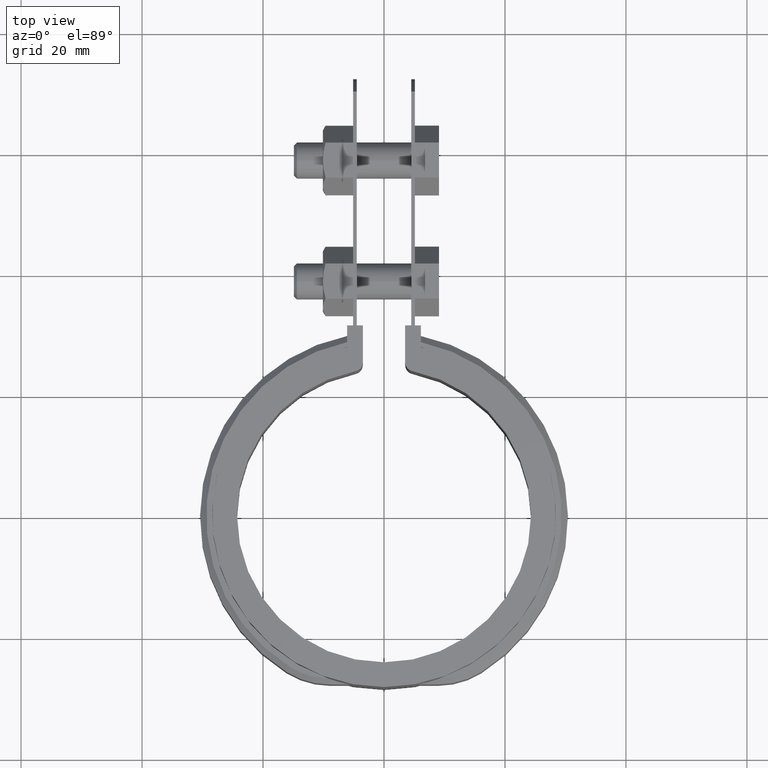
[diagram: clean part render]
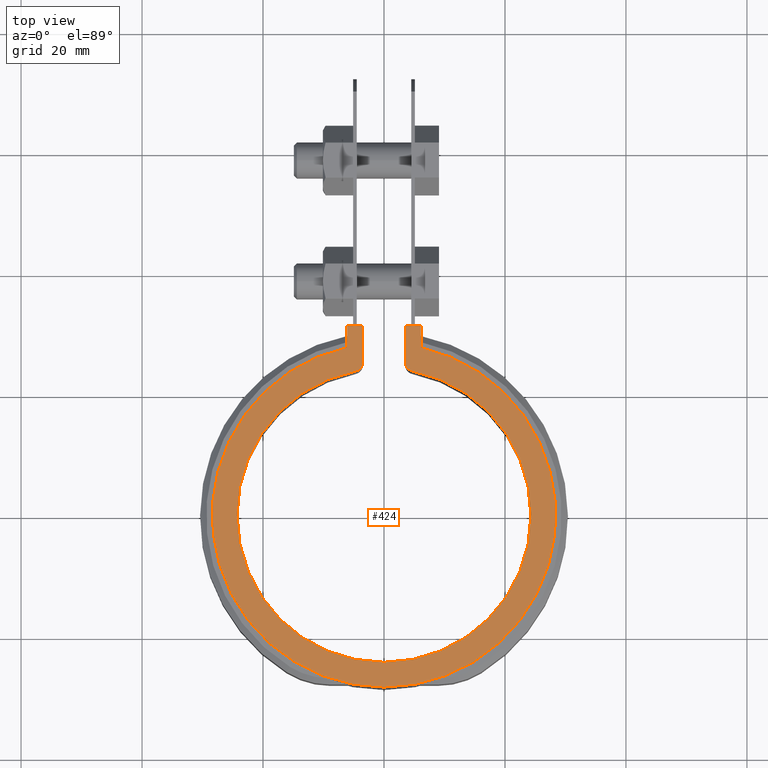
[diagram: same view with one face highlighted and labeled with its STEP entity id]
A machine part, top view. The second image highlights one B-rep face of the part: STEP entity #424.
In plain terms, the highlighted planar face has unit normal (0, 0, -1).
Its self-contained STEP definition (entity closure, byte-faithful):
#424 = ADVANCED_FACE( '', ( #764 ), #765, .F. );
#764 = FACE_OUTER_BOUND( '', #1827, .T. );
#765 = PLANE( '', #1828 );
#1827 = EDGE_LOOP( '', ( #4284, #4285, #4286, #4287, #4288, #4289, #4290, #4291, #4292, #4293 ) );
#1828 = AXIS2_PLACEMENT_3D( '', #4294, #4295, #4296 );
#4284 = ORIENTED_EDGE( '', *, *, #5345, .F. );
#4285 = ORIENTED_EDGE( '', *, *, #5518, .T. );
#4286 = ORIENTED_EDGE( '', *, *, #5519, .T. );
#4287 = ORIENTED_EDGE( '', *, *, #5520, .T. );
#4288 = ORIENTED_EDGE( '', *, *, #5515, .F. );
#4289 = ORIENTED_EDGE( '', *, *, #5338, .T. );
#4290 = ORIENTED_EDGE( '', *, *, #5521, .T. );
#4291 = ORIENTED_EDGE( '', *, *, #5522, .F. );
#4292 = ORIENTED_EDGE( '', *, *, #5523, .T. );
#4293 = ORIENTED_EDGE( '', *, *, #5524, .T. );
#4294 = CARTESIAN_POINT( '', ( -6.50000000000000, 27.0294284068310, 1.50000000000000 ) );
#4295 = DIRECTION( '', ( 0.000000000000000, 0.000000000000000, -1.00000000000000 ) );
#4296 = DIRECTION( '', ( 1.00000000000000, -6.04196909756771E-017, 0.000000000000000 ) );
#5338 = EDGE_CURVE( '', #6034, #6035, #6036, .T. );
#5345 = EDGE_CURVE( '', #6047, #6043, #6049, .T. );
#5515 = EDGE_CURVE( '', #6034, #6331, #6332, .T. );
#5518 = EDGE_CURVE( '', #6047, #6336, #6337, .T. );
#5519 = EDGE_CURVE( '', #6336, #6338, #6339, .T. );
#5520 = EDGE_CURVE( '', #6338, #6331, #6340, .T. );
#5521 = EDGE_CURVE( '', #6035, #6341, #6342, .F. );
#5522 = EDGE_CURVE( '', #6343, #6341, #6344, .F. );
#5523 = EDGE_CURVE( '', #6343, #6345, #6346, .F. );
#5524 = EDGE_CURVE( '', #6345, #6043, #6347, .T. );
#6034 = VERTEX_POINT( '', #7966 );
#6035 = VERTEX_POINT( '', #7967 );
#6036 = LINE( '', #7968, #7969 );
#6043 = VERTEX_POINT( '', #7979 );
#6047 = VERTEX_POINT( '', #7985 );
#6049 = LINE( '', #7988, #7989 );
#6331 = VERTEX_POINT( '', #9731 );
#6332 = LINE( '', #9732, #9733 );
#6336 = VERTEX_POINT( '', #9739 );
#6337 = LINE( '', #9740, #9741 );
#6338 = VERTEX_POINT( '', #9742 );
#6339 = CIRCLE( '', #9743, 28.3950000000000 );
#6340 = LINE( '', #9744, #9745 );
#6341 = VERTEX_POINT( '', #9746 );
#6342 = CIRCLE( '', #9747, 1.50000000000000 );
#6343 = VERTEX_POINT( '', #9748 );
#6344 = CIRCLE( '', #9749, 24.3000000000000 );
#6345 = VERTEX_POINT( '', #9750 );
#6346 = CIRCLE( '', #9751, 1.50000000000000 );
#6347 = LINE( '', #9752, #9753 );
#7966 = CARTESIAN_POINT( '', ( 3.50000000000001, 31.4045271556056, 1.50000000000000 ) );
#7967 = CARTESIAN_POINT( '', ( 3.50000000000000, 25.3108672312902, 1.50000000000000 ) );
#7968 = CARTESIAN_POINT( '', ( 3.50000000000000, 31.8400000000000, 1.50000000000000 ) );
#7969 = VECTOR( '', #10551, 1000.00000000000 );
#7979 = CARTESIAN_POINT( '', ( -3.49999999999999, 31.4045271556056, 1.50000000000000 ) );
#7985 = CARTESIAN_POINT( '', ( -6.10000000000002, 31.4045271556056, 1.50000000000000 ) );
#7988 = CARTESIAN_POINT( '', ( -6.50000000000000, 31.4045271556056, 1.50000000000000 ) );
#7989 = VECTOR( '', #10558, 1000.00000000000 );
#9731 = CARTESIAN_POINT( '', ( 6.09999999999998, 31.4045271556056, 1.50000000000000 ) );
#9732 = CARTESIAN_POINT( '', ( -6.50000000000000, 31.4045271556056, 1.50000000000000 ) );
#9733 = VECTOR( '', #10685, 1000.00000000000 );
#9739 = CARTESIAN_POINT( '', ( -6.10000000000002, 27.7320396833698, 1.50000000000000 ) );
#9740 = CARTESIAN_POINT( '', ( -6.10000000000002, 31.8400000000000, 1.50000000000000 ) );
#9741 = VECTOR( '', #10688, 1000.00000000000 );
#9742 = CARTESIAN_POINT( '', ( 6.09999999999998, 27.7320396833699, 1.50000000000000 ) );
#9743 = AXIS2_PLACEMENT_3D( '', #10689, #10690, #10691 );
#9744 = CARTESIAN_POINT( '', ( 6.09999999999998, 27.7320396833698, 1.50000000000000 ) );
#9745 = VECTOR( '', #10692, 1000.00000000000 );
#9746 = CARTESIAN_POINT( '', ( 4.70930232558140, 23.8393051829594, 1.50000000000000 ) );
#9747 = AXIS2_PLACEMENT_3D( '', #10693, #10694, #10695 );
#9748 = CARTESIAN_POINT( '', ( -4.70930232558139, 23.8393051829594, 1.50000000000000 ) );
#9749 = AXIS2_PLACEMENT_3D( '', #10696, #10697, #10698 );
#9750 = CARTESIAN_POINT( '', ( -3.49999999999999, 25.3108672312902, 1.50000000000000 ) );
#9751 = AXIS2_PLACEMENT_3D( '', #10699, #10700, #10701 );
#9752 = CARTESIAN_POINT( '', ( -3.49999999999999, 24.0415686884196, 1.50000000000000 ) );
#9753 = VECTOR( '', #10702, 1000.00000000000 );
#10551 = DIRECTION( '', ( -6.07153216591882E-017, -1.00000000000000, 0.000000000000000 ) );
#10558 = DIRECTION( '', ( 1.00000000000000, 0.000000000000000, 0.000000000000000 ) );
#10685 = DIRECTION( '', ( 1.00000000000000, 0.000000000000000, 0.000000000000000 ) );
#10688 = DIRECTION( '', ( -6.07153216591882E-017, -1.00000000000000, 0.000000000000000 ) );
#10689 = CARTESIAN_POINT( '', ( 0.000000000000000, 0.000000000000000, 1.50000000000000 ) );
#10690 = DIRECTION( '', ( 0.000000000000000, 0.000000000000000, 1.00000000000000 ) );
#10691 = DIRECTION( '', ( 1.00000000000000, -6.07153216591882E-017, 0.000000000000000 ) );
#10692 = DIRECTION( '', ( 6.07153216591882E-017, 1.00000000000000, 0.000000000000000 ) );
#10693 = CARTESIAN_POINT( '', ( 5.00000000000000, 25.3108672312902, 1.50000000000000 ) );
#10694 = DIRECTION( '', ( 0.000000000000000, 0.000000000000000, -1.00000000000000 ) );
#10695 = DIRECTION( '', ( -1.00000000000000, 0.000000000000000, 0.000000000000000 ) );
#10696 = CARTESIAN_POINT( '', ( 0.000000000000000, 0.000000000000000, 1.50000000000000 ) );
#10697 = DIRECTION( '', ( 0.000000000000000, 0.000000000000000, -1.00000000000000 ) );
#10698 = DIRECTION( '', ( -1.00000000000000, 0.000000000000000, 0.000000000000000 ) );
#10699 = CARTESIAN_POINT( '', ( -4.99999999999999, 25.3108672312902, 1.50000000000000 ) );
#10700 = DIRECTION( '', ( 0.000000000000000, 0.000000000000000, -1.00000000000000 ) );
#10701 = DIRECTION( '', ( -1.00000000000000, 0.000000000000000, 0.000000000000000 ) );
#10702 = DIRECTION( '', ( 6.07153216591882E-017, 1.00000000000000, 0.000000000000000 ) );